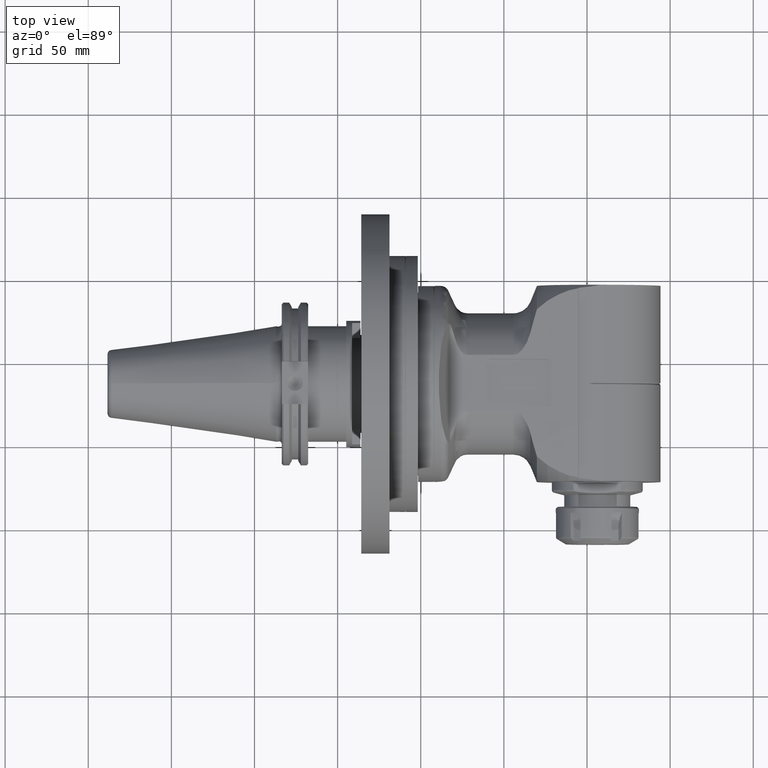
[diagram: clean part render]
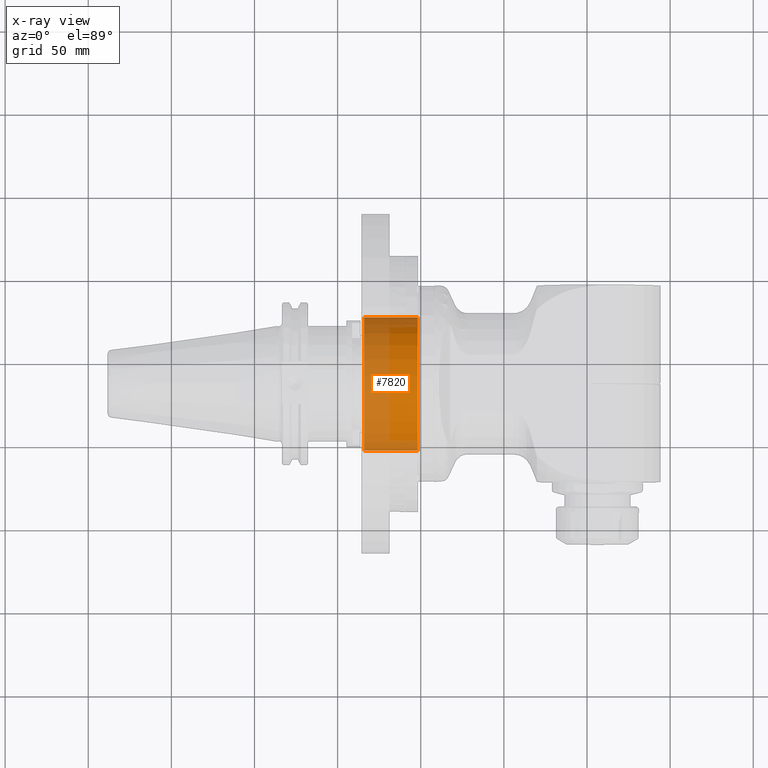
[diagram: x-ray — body ghosted, one internal face saturated and labeled with its STEP entity id]
A machine part, top view, then the same camera in x-ray: the body is ghosted and one INTERNAL B-rep face — a face not visible from any outside direction — is saturated and labeled: STEP entity #7820.
In plain terms, the highlighted cylindrical surface (bore or boss wall) has radius 40 mm, axis along (-1, -0, 0).
Its self-contained STEP definition (entity closure, byte-faithful):
#304=CYLINDRICAL_SURFACE('',#8581,40.);
#678=FACE_OUTER_BOUND('',#1112,.T.);
#1112=EDGE_LOOP('',(#6327,#6328,#6329,#6330,#6331));
#1561=CIRCLE('',#8580,40.);
#1562=CIRCLE('',#8582,40.);
#1563=CIRCLE('',#8583,40.);
#1914=LINE('',#12962,#2523);
#2523=VECTOR('',#10174,40.);
#3440=VERTEX_POINT('',#12955);
#3441=VERTEX_POINT('',#12958);
#3442=VERTEX_POINT('',#12959);
#4514=EDGE_CURVE('',#3440,#3440,#1561,.T.);
#4515=EDGE_CURVE('',#3441,#3442,#1562,.T.);
#4516=EDGE_CURVE('',#3442,#3441,#1563,.T.);
#4517=EDGE_CURVE('',#3442,#3440,#1914,.T.);
#6327=ORIENTED_EDGE('',*,*,#4515,.F.);
#6328=ORIENTED_EDGE('',*,*,#4516,.F.);
#6329=ORIENTED_EDGE('',*,*,#4517,.T.);
#6330=ORIENTED_EDGE('',*,*,#4514,.F.);
#6331=ORIENTED_EDGE('',*,*,#4517,.F.);
#7820=ADVANCED_FACE('',(#678),#304,.T.);
#8580=AXIS2_PLACEMENT_3D('',#12956,#10166,#10167);
#8581=AXIS2_PLACEMENT_3D('',#12957,#10168,#10169);
#8582=AXIS2_PLACEMENT_3D('',#12960,#10170,#10171);
#8583=AXIS2_PLACEMENT_3D('',#12961,#10172,#10173);
#10166=DIRECTION('center_axis',(1.,0.,0.));
#10167=DIRECTION('ref_axis',(0.,1.,0.));
#10168=DIRECTION('center_axis',(-1.,0.,0.));
#10169=DIRECTION('ref_axis',(0.,1.,0.));
#10170=DIRECTION('center_axis',(-1.,0.,0.));
#10171=DIRECTION('ref_axis',(0.,-1.,0.));
#10172=DIRECTION('center_axis',(-1.,0.,0.));
#10173=DIRECTION('ref_axis',(0.,-1.,0.));
#10174=DIRECTION('',(1.,0.,0.));
#12955=CARTESIAN_POINT('',(-108.,-40.,4.89858719658941E-15));
#12956=CARTESIAN_POINT('Origin',(-108.,0.,0.));
#12957=CARTESIAN_POINT('Origin',(-125.,0.,0.));
#12958=CARTESIAN_POINT('',(-140.26794919243,40.,0.));
#12959=CARTESIAN_POINT('',(-140.26794919243,-40.,4.89858719658941E-15));
#12960=CARTESIAN_POINT('Origin',(-140.26794919243,0.,0.));
#12961=CARTESIAN_POINT('Origin',(-140.26794919243,0.,0.));
#12962=CARTESIAN_POINT('',(-125.,-40.,4.89858719658941E-15));